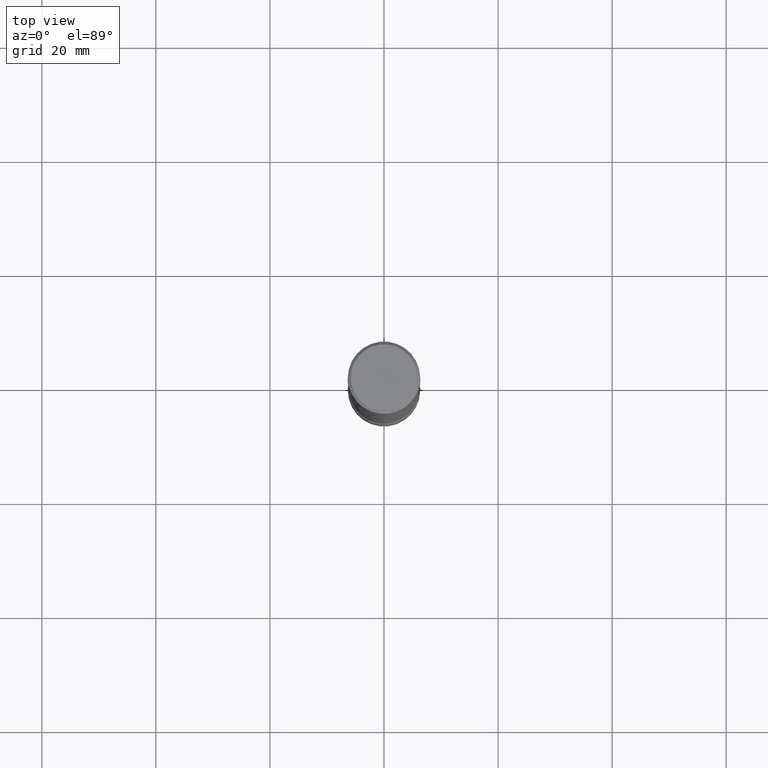
[diagram: clean part render]
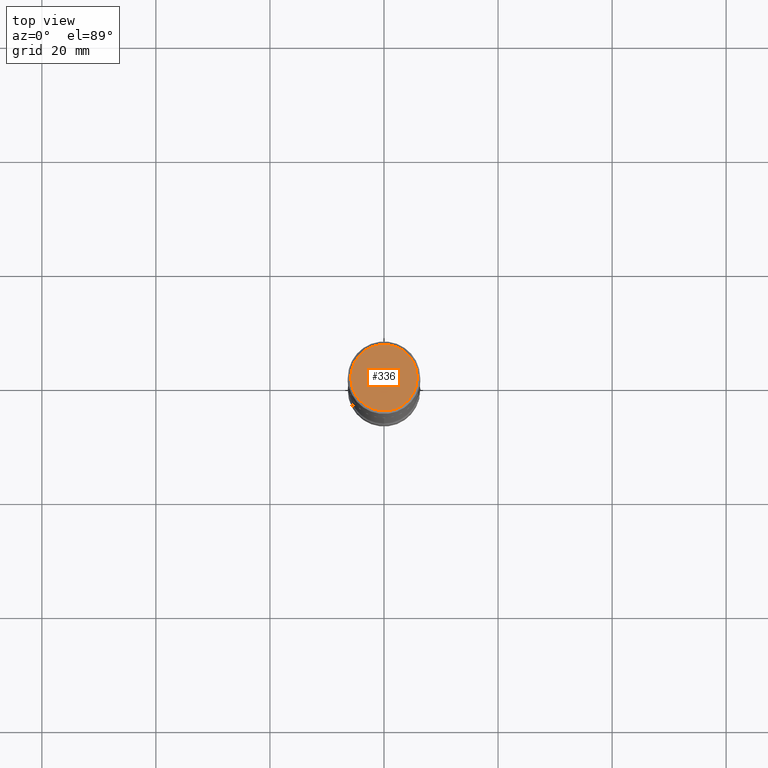
[diagram: same view with one face highlighted and labeled with its STEP entity id]
A machine part, top view. The second image highlights one B-rep face of the part: STEP entity #336.
In plain terms, the highlighted planar face has unit normal (0, -0, -1).
Its self-contained STEP definition (entity closure, byte-faithful):
#14 = AXIS2_PLACEMENT_3D ( 'NONE', #414, #169, #211 ) ;
#85 = EDGE_CURVE ( 'NONE', #86, #188, #228, .T. ) ;
#86 = VERTEX_POINT ( 'NONE', #505 ) ;
#136 = CARTESIAN_POINT ( 'NONE',  ( -0.2300000000000001210, 1.640996229256273111E-15, 4.268512490089056766E-18 ) ) ;
#159 = DIRECTION ( 'NONE',  ( 1.000000000000000000, -6.982962677686265922E-15, 4.876225828469306079E-29 ) ) ;
#169 = DIRECTION ( 'NONE',  ( -2.445468806185136597E-29, 3.491481338843145583E-15, 1.000000000000000000 ) ) ;
#188 = VERTEX_POINT ( 'NONE', #136 ) ;
#204 = AXIS2_PLACEMENT_3D ( 'NONE', #298, #299, #159 ) ;
#211 = DIRECTION ( 'NONE',  ( 1.000000000000000000, -6.982962677686265922E-15, 4.876225828469306079E-29 ) ) ;
#228 = CIRCLE ( 'NONE', #204, 0.2300000000000001210 ) ;
#229 = CIRCLE ( 'NONE', #14, 0.2300000000000001210 ) ;
#269 = DIRECTION ( 'NONE',  ( -1.000000000000000000, 6.982962677686265922E-15, -4.876176775795935793E-29 ) ) ;
#279 = ORIENTED_EDGE ( 'NONE', *, *, #85, .T. ) ;
#298 = CARTESIAN_POINT ( 'NONE',  ( -1.043851414335219820E-46, 1.490343170380447200E-32, 4.268512490100411279E-18 ) ) ;
#299 = DIRECTION ( 'NONE',  ( -2.445468806185136597E-29, 3.491481338843145583E-15, 1.000000000000000000 ) ) ;
#308 = CARTESIAN_POINT ( 'NONE',  ( 1.606081415867842053E-15, 0.2300000000000001210, -8.009064516888736730E-16 ) ) ;
#314 = EDGE_LOOP ( 'NONE', ( #484, #279 ) ) ;
#336 = ADVANCED_FACE ( 'NONE', ( #428 ), #464, .F. ) ;
#414 = CARTESIAN_POINT ( 'NONE',  ( -1.043851414335219820E-46, 1.490343170380447200E-32, 4.268512490100411279E-18 ) ) ;
#425 = AXIS2_PLACEMENT_3D ( 'NONE', #308, #514, #269 ) ;
#428 = FACE_OUTER_BOUND ( 'NONE', #314, .T. ) ;
#464 = PLANE ( 'NONE',  #425 ) ;
#484 = ORIENTED_EDGE ( 'NONE', *, *, #556, .T. ) ;
#505 = CARTESIAN_POINT ( 'NONE',  ( 0.2300000000000001210, -1.681434332853599997E-15, 4.268512490111905999E-18 ) ) ;
#514 = DIRECTION ( 'NONE',  ( 2.438088387897960049E-29, -3.491481338843145188E-15, -1.000000000000000000 ) ) ;
#556 = EDGE_CURVE ( 'NONE', #188, #86, #229, .T. ) ;